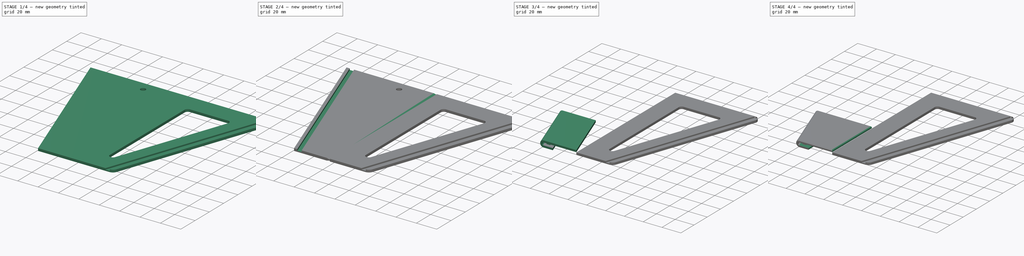
[diagram: build sequence overview — one tinted view per stage of 4, left to right]
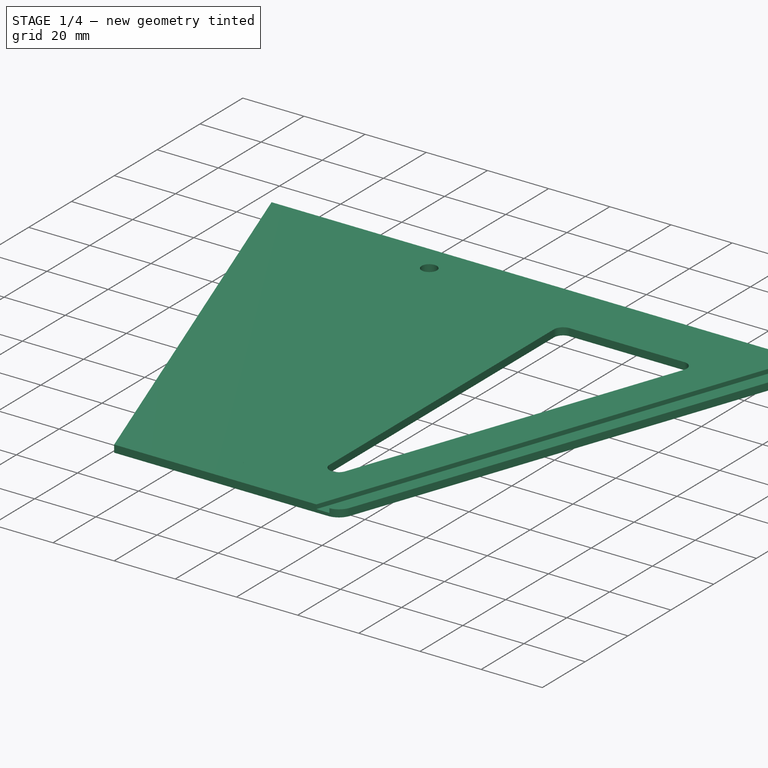
[diagram: stage 1 of 4 — iso view after this stage's code; geometry added in this stage tinted green]
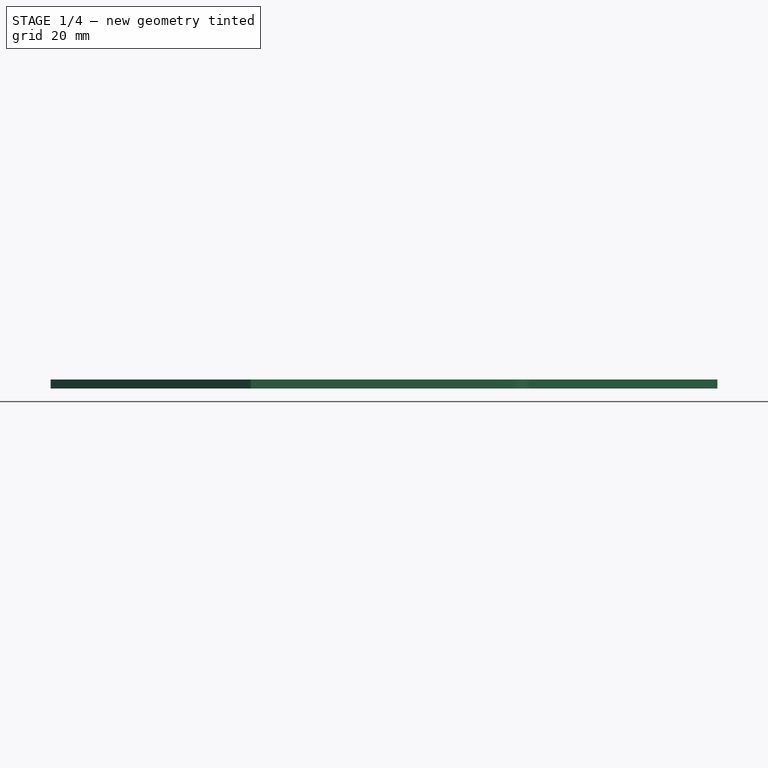
[diagram: stage 1 of 4 — front view after this stage's code; geometry added in this stage tinted green]
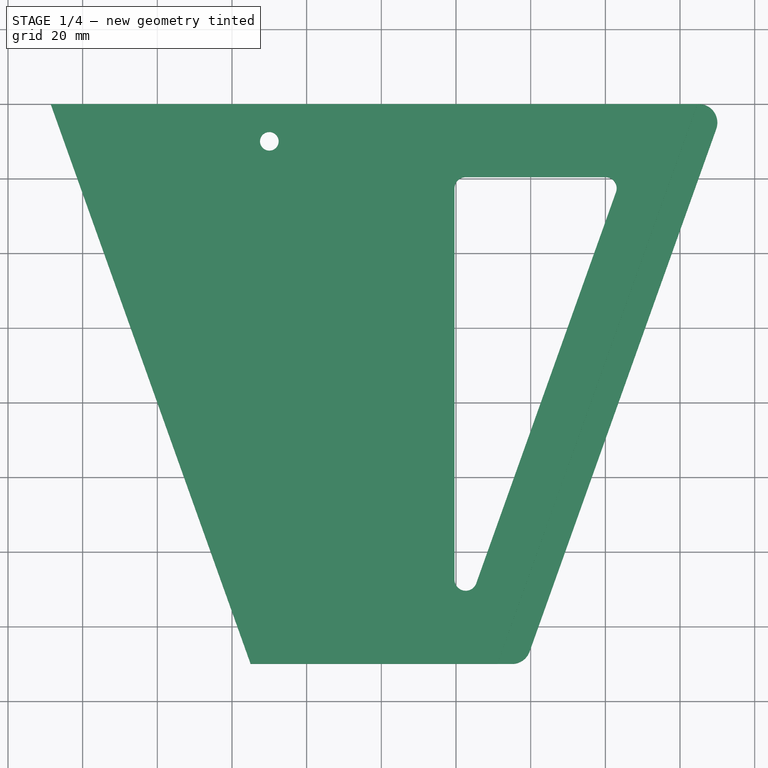
[diagram: stage 1 of 4 — top view after this stage's code; geometry added in this stage tinted green]
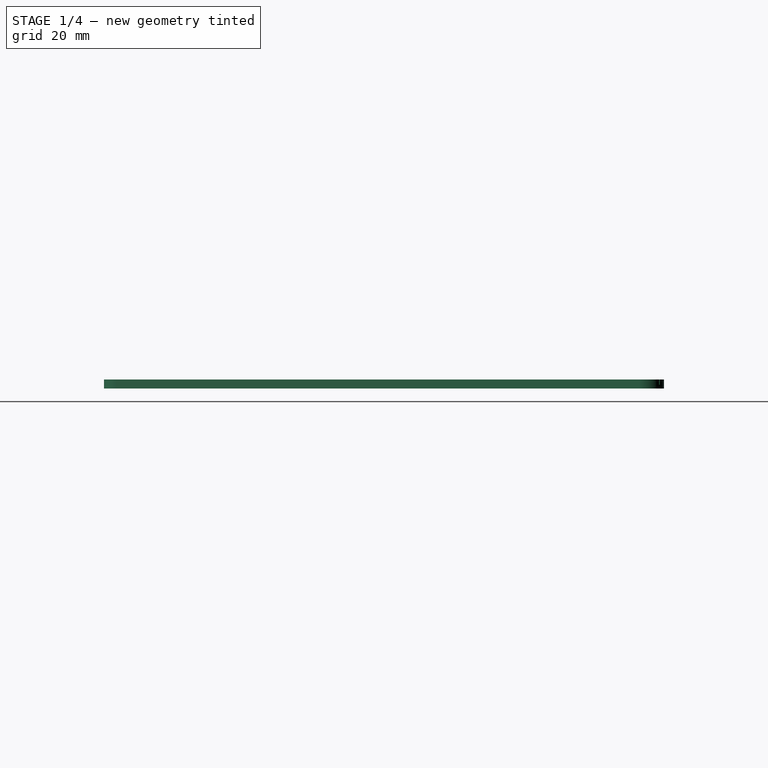
[diagram: stage 1 of 4 — right view after this stage's code; geometry added in this stage tinted green]
FCSTD DOCUMENT  (FreeCAD 26.3R20260624 (Git shallow))
Label: Tracette triangle
License: Creative Commons Attribution-NonCommercial-ShareAlike 4.0
LicenseURL: https://creativecommons.org/licenses/by-nc-sa/4.0/
objects: Sketcher::SketchObject×6, PartDesign::Pad×5, PartDesign::Chamfer×5, App::Point×3, PartDesign::Body×3, PartDesign::Pocket×2, PartDesign::SubShapeBinder×1, App::VarSet×1, PartDesign::Fillet×1
note: 55 computed .brp shape members not serialized (recipe doc carries the construction recipe); baked Part::Feature solids carry a one-line shape summary decoded from their .brp

FEATURE [App::Point] Origin001  label="Origine-point"
  Role = Origin
FEATURE [Sketcher::SketchObject] Sketch
  ArcFitTolerance = 1e-06
  AttachmentSupport = -> [Origin]
  ExternalTypes = [0]
  FullyConstrained = true
  MakeInternals = true
  MapMode = 2
  expr: Constraints[12] = VarSet.Stop_Lenght
  expr: Constraints[13] = VarSet.Range + 10 mm
  expr: Constraints[14] = VarSet.Range
  expr: Constraints[8] = VarSet.Length
  sketch-geometry (6):
    g0: LineSegment StartX=-88.5714 StartY=0 StartZ=0 EndX=0 EndY=0 EndZ=0
    g1: LineSegment StartX=0 StartY=0 StartZ=0 EndX=0 EndY=-150 EndZ=0
    g2: LineSegment StartX=0 StartY=-150 StartZ=0 EndX=-35 EndY=-150 EndZ=0
    g3: LineSegment StartX=-35 StartY=-150 StartZ=0 EndX=-88.5714 EndY=0 EndZ=0
    g4: LineSegment [constr] StartX=-63.5714 StartY=-70 StartZ=0 EndX=0 EndY=-70 EndZ=0
    g5: Circle CenterX=-30 CenterY=-10 CenterZ=0 NormalX=0 NormalY=0 NormalZ=1 AngleXU=0 Radius=2.5
  constraints (18):
    c: PointOnObject(g0,g-1)
    c: Coincident(g0,g-1)
    c: Coincident(g0,g1)
    c: PointOnObject(g1,g-2)
    c: Coincident(g1,g2)
    c: Horizontal(g2)
    c: Coincident(g2,g3)
    c: Coincident(g3,g0)
    c: DistanceY(g1,g1) = 150
    c: PointOnObject(g4,g3)
    c: PointOnObject(g4,g1)
    c: Horizontal(g4)
    c: DistanceY(g1,g4) = 80
    c: DistanceX(g2,g2) = 35
    c: DistanceX(g0,g4) = 25
    c: Diameter(g5) = 5
    c: Distance(g5,g0) = 10
    c: DistanceX(g5,g-1) = 30
FEATURE [PartDesign::Pad] Pad
  Direction = (0,0,1)
  FuzzyTolerance = 0
  Length = 2.4
  Length2 = 10
  Profile = -> Sketch
  ReferenceAxis = -> Sketch [N_Axis]
  Refine = true
  SideType = 0
  Suppressed = false
  Type = 0
  Type2 = 0
FEATURE [PartDesign::Body] Body  label="Ruler"
  AllowCompound = true
  Group = -> [Sketch,Pad,Sketch001,Pocket,Chamfer001,Chamfer002,Fillet001,Chamfer003,Sketch003,Chamfer004]
  Origin = -> Origin
  Tip = -> Chamfer004
FEATURE [App::Point] Origin005  label="Origine-point002"
  Role = Origin
FEATURE [Sketcher::SketchObject] Sketch004
  ArcFitTolerance = 1e-06
  AttachmentSupport = -> [Origin004]
  ExternalTypes = [0]
  FullyConstrained = true
  MakeInternals = true
  MapMode = 2
  expr: Constraints[13] = VarSet.Range + 10 mm
  expr: Constraints[42] = VarSet.Stop_Lenght
  expr: Constraints[45] = VarSet.Range
  expr: Constraints[9] = VarSet.Length
  sketch-geometry (19):
    g0: LineSegment StartX=0 StartY=0 StartZ=0 EndX=85 EndY=0 EndZ=0
    g1: ArcOfCircle CenterX=85 CenterY=-5 CenterZ=0 NormalX=0 NormalY=0 NormalZ=1 AngleXU=0 Radius=5 StartAngle=5.94016 EndAngle=7.85398
    g2: LineSegment StartX=89.7087 StartY=-6.68168 StartZ=0 EndX=39.7087 EndY=-146.682 EndZ=0
    g3: ArcOfCircle CenterX=35 CenterY=-145 CenterZ=0 NormalX=0 NormalY=0 NormalZ=1 AngleXU=0 Radius=5 StartAngle=4.71239 EndAngle=5.94016
    g4: LineSegment StartX=35 StartY=-150 StartZ=0 EndX=0 EndY=-150 EndZ=0
    g5: LineSegment StartX=0 StartY=-150 StartZ=0 EndX=0 EndY=0 EndZ=0
    g6: LineSegment StartX=25.4234 StartY=-128.411 StartZ=0 EndX=62.8533 EndY=-23.6072 EndZ=0
    g7: LineSegment StartX=60.0281 StartY=-19.5982 StartZ=0 EndX=22.5982 EndY=-19.5982 EndZ=0
    g8: ArcOfCircle CenterX=60.0281 CenterY=-22.5982 CenterZ=0 NormalX=0 NormalY=0 NormalZ=1 AngleXU=0 Radius=3 StartAngle=5.94016 EndAngle=7.85398
    g9: GeomPoint [constr] X=64.2851 Y=-19.5982 Z=0
    g10: LineSegment StartX=19.5982 StartY=-22.5982 StartZ=0 EndX=19.5982 EndY=-127.402 EndZ=0
    g11: ArcOfCircle CenterX=22.5982 CenterY=-22.5982 CenterZ=0 NormalX=0 NormalY=0 NormalZ=1 AngleXU=0 Radius=3 StartAngle=1.5708 EndAngle=3.14159
    g12: GeomPoint [constr] X=19.5982 Y=-19.5982 Z=0
    g13: ArcOfCircle CenterX=22.5982 CenterY=-127.402 CenterZ=0 NormalX=0 NormalY=0 NormalZ=1 AngleXU=0 Radius=3 StartAngle=3.14159 EndAngle=5.94016
    g14: ArcOfCircle [constr] CenterX=22.5982 CenterY=-127.402 CenterZ=0 NormalX=0 NormalY=0 NormalZ=1 AngleXU=0 Radius=22.5982 StartAngle=3.14159 EndAngle=5.94016
    g15: ArcOfCircle [constr] CenterX=22.5982 CenterY=-22.5982 CenterZ=0 NormalX=0 NormalY=0 NormalZ=1 AngleXU=0 Radius=22.5982 StartAngle=1.5708 EndAngle=3.14159
    g16: ArcOfCircle [constr] CenterX=60.0281 CenterY=-22.5982 CenterZ=0 NormalX=0 NormalY=0 NormalZ=1 AngleXU=0 Radius=22.5982 StartAngle=5.94016 EndAngle=7.85398
    g17: LineSegment [constr] StartX=67.095 StartY=-70 StartZ=0 EndX=0 EndY=-70 EndZ=0
    g18: GeomPoint [constr] X=92.095 Y=0 Z=0
  constraints (46):
    c: Coincident(g0,g-1)
    c: PointOnObject(g0,g-1)
    c: Tangent(g0,g1) = 1.5708
    c: Tangent(g2,g3) = 1.5708
    c: Tangent(g3,g4) = 1.5708
    c: PointOnObject(g4,g-2)
    c: Coincident(g4,g5)
    c: Coincident(g5,g0)
    c: Horizontal(g4)
    c: DistanceY(g5,g5) = 150
    c: Tangent(g1,g2) = 1.5708
    c: Equal(g3,g1)
    c: Diameter(g1) = 10
    c: DistanceX(g4,g4) = 35
    c: PointOnObject(g9,g7)
    c: PointOnObject(g9,g6)
    c: Tangent(g7,g8) = -1.5708
    c: Tangent(g6,g8) = -1.5708
    c: Vertical(g10)
    c: Horizontal(g7)
    c: PointOnObject(g12,g7)
    c: PointOnObject(g12,g10)
    c: Tangent(g7,g11) = -1.5708
    c: Tangent(g10,g11) = -1.5708
    c: Tangent(g10,g13) = -1.5708
    c: Equal(g11,g8)
    c: Diameter(g8) = 6
    c: Coincident(g14,g13)
    c: Coincident(g15,g11)
    c: Tangent(g15,g5) = 1.5708
    c: Tangent(g14,g5) = 1.5708
    c: Tangent(g14,g4)
    c: Coincident(g16,g8)
    c: Tangent(g16,g0) = 1.5708
    c: Tangent(g16,g2) = 1.5708
    c: Tangent(g15,g0) = 1.5708
    c: Equal(g13,g8)
    c: Tangent(g14,g2) = 1.5708
    c: Tangent(g13,g6) = -1.5708
    c: PointOnObject(g17,g5)
    c: PointOnObject(g17,g2)
    c: Horizontal(g17)
    c: DistanceY(g4,g17) = 80
    c: PointOnObject(g18,g2)
    c: Horizontal(g18,g0)
    c: DistanceX(g17,g18) = 25
FEATURE [PartDesign::Pad] Pad004
  Direction = (0,0,1)
  FuzzyTolerance = 0
  Length = 2.4
  Length2 = 10
  Profile = -> Sketch004 [InternalFace1]
  ReferenceAxis = -> Sketch004 [N_Axis]
  Refine = true
  SideType = 0
  Suppressed = false
  Type = 0
  Type2 = 0
FEATURE [Sketcher::SketchObject] Sketch005
  ArcFitTolerance = 1e-06
  AttachmentSupport = -> [Pad004]
  ExternalGeometry = -> [Pad004]
  ExternalTypes = [0,0,0]
  FullyConstrained = true
  MakeInternals = true
  MapMode = 5
  Placement = pos=(81.677,-29.1704,0) rot=(0.708302,0.499154,0.499154;1.90904rad)
  sketch-geometry (4):
    g0: LineSegment StartX=-141.261 StartY=2.4 StartZ=0 EndX=-141.261 EndY=1 EndZ=0
    g1: LineSegment StartX=-141.261 StartY=1 StartZ=0 EndX=28.5886 EndY=1 EndZ=0
    g2: LineSegment StartX=28.5886 StartY=1 StartZ=0 EndX=28.5886 EndY=2.4 EndZ=0
    g3: LineSegment StartX=28.5886 StartY=2.4 StartZ=0 EndX=-141.261 EndY=2.4 EndZ=0
  constraints (10):
    c: Coincident(g0,g1)
    c: Coincident(g1,g2)
    c: Coincident(g2,g3)
    c: Coincident(g3,g0)
    c: Vertical(g0)
    c: Vertical(g2)
    c: Horizontal(g1)
    c: Coincident(g0,g-4)
    c: Coincident(g-5,g2)
    c: DistanceY(g2,g2) = 1.4
FEATURE [PartDesign::Pocket] Pocket001
  BaseFeature = -> Pad004
  Direction = (-0.94,0.34,0)
  FuzzyTolerance = 0
  Length = 3
  Length2 = -7
  Profile = -> Sketch005
  ReferenceAxis = -> Sketch005 [N_Axis]
  Refine = true
  SideType = 1
  Suppressed = false
  Type = 0
  Type2 = 0
FEATURE [PartDesign::Body] Body002  label="Ruler v2"
  AllowCompound = true
  Group = -> [Sketch004,Pad004,Sketch005,Pocket001]
  Origin = -> Origin004
  Tip = -> Pocket001
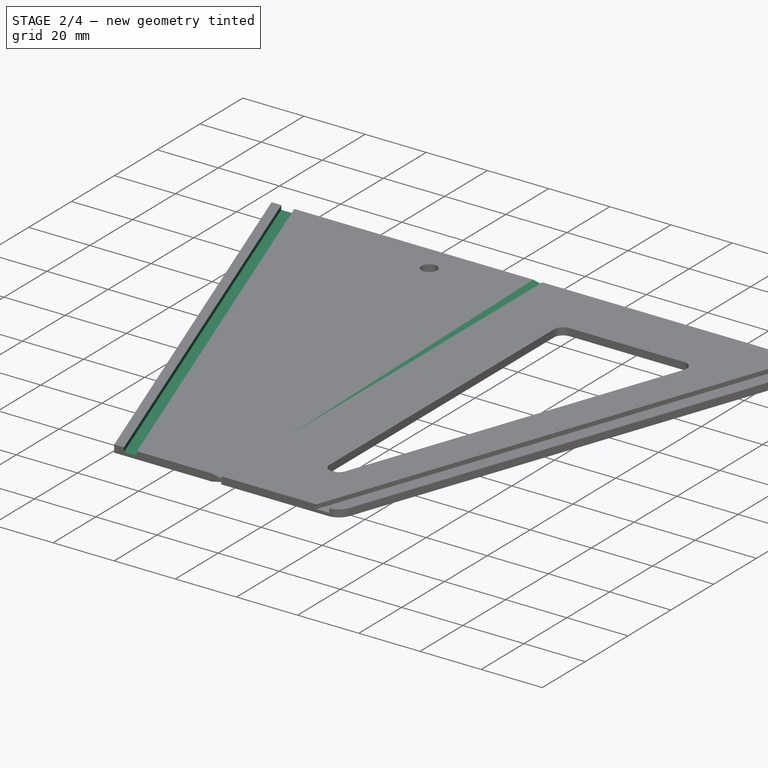
[diagram: stage 2 of 4 — iso view after this stage's code; geometry added in this stage tinted green]
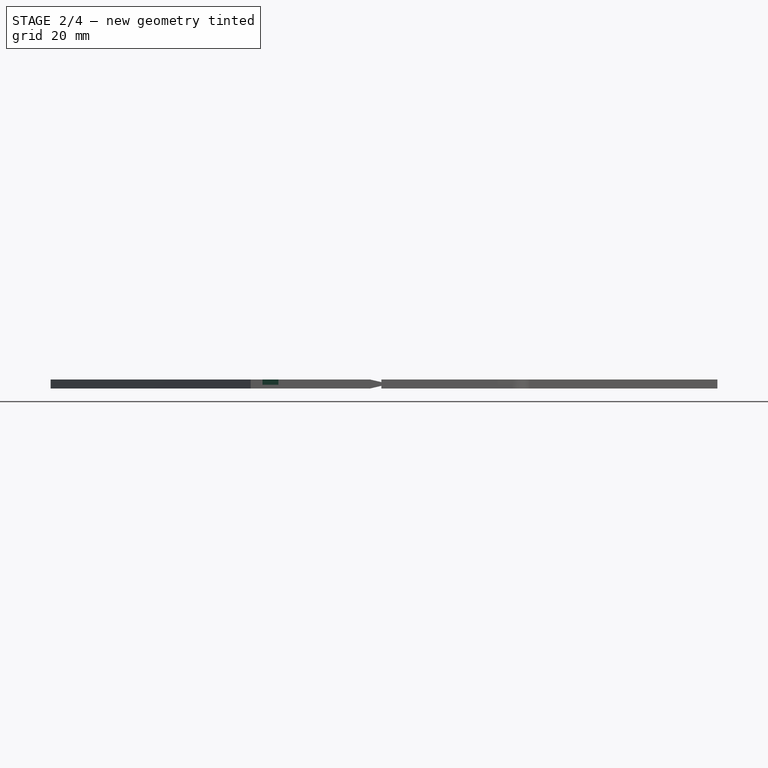
[diagram: stage 2 of 4 — front view after this stage's code; geometry added in this stage tinted green]
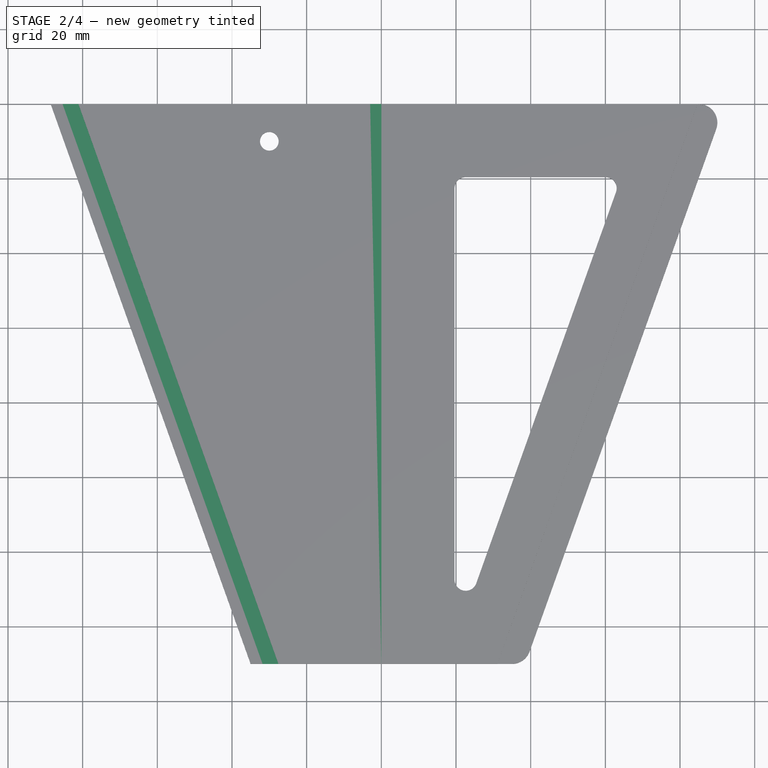
[diagram: stage 2 of 4 — top view after this stage's code; geometry added in this stage tinted green]
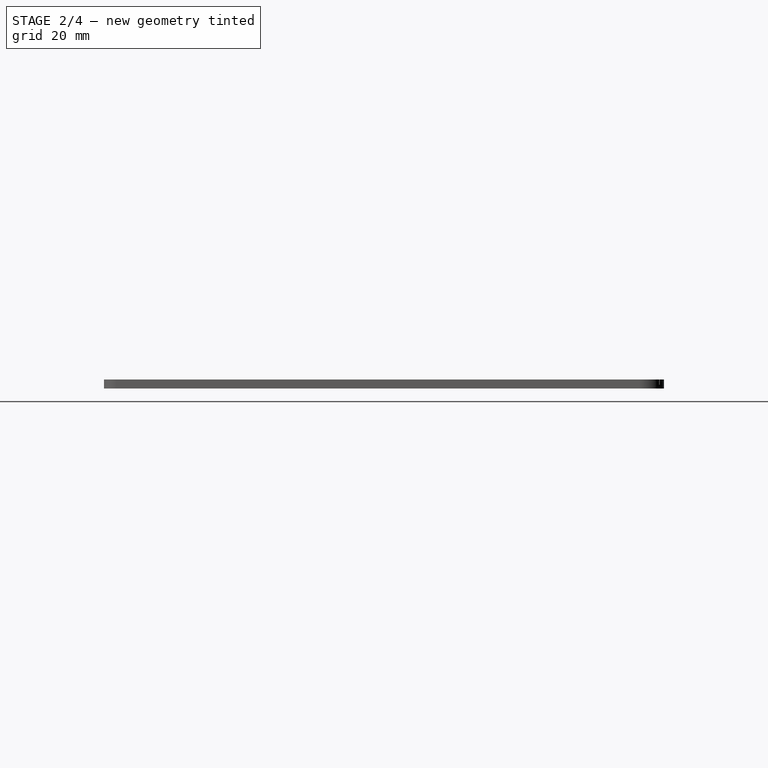
[diagram: stage 2 of 4 — right view after this stage's code; geometry added in this stage tinted green]
FEATURE [Sketcher::SketchObject] Sketch001
  ArcFitTolerance = 1e-06
  AttachmentSupport = -> [Pad]
  ExternalGeometry = -> [Pad]
  ExternalTypes = [0,0]
  FullyConstrained = true
  MakeInternals = true
  MapMode = 5
  Placement = pos=(-78.552,-28.0543,0) rot=(0.708302,-0.499154,-0.499154;1.90904rad)
  sketch-geometry (4):
    g0: LineSegment StartX=-29.7898 StartY=2.4 StartZ=0 EndX=-29.7898 EndY=1 EndZ=0
    g1: LineSegment StartX=-29.7898 StartY=1 StartZ=0 EndX=141.261 EndY=1 EndZ=0
    g2: LineSegment StartX=141.261 StartY=1 StartZ=0 EndX=141.261 EndY=2.4 EndZ=0
    g3: LineSegment StartX=141.261 StartY=2.4 StartZ=0 EndX=-29.7898 EndY=2.4 EndZ=0
  constraints (11):
    c: Coincident(g0,g1)
    c: Coincident(g1,g2)
    c: Coincident(g2,g3)
    c: Coincident(g3,g0)
    c: Vertical(g0)
    c: Vertical(g2)
    c: Horizontal(g1)
    c: Horizontal(g3)
    c: Coincident(g0,g-3)
    c: PointOnObject(g1,g-4)
    c: DistanceY(g2,g2) = 1.4
FEATURE [PartDesign::Pocket] Pocket
  BaseFeature = -> Pad
  Direction = (0.941742,0.336336,0)
  FuzzyTolerance = 0
  Length = 3
  Length2 = -7
  Profile = -> Sketch001
  ReferenceAxis = -> Sketch001 [N_Axis]
  Refine = true
  SideType = 1
  Suppressed = false
  Type = 0
  Type2 = 0
FEATURE [PartDesign::Body] Body001  label="Stop"
  AllowCompound = true
  Group = -> [Binder,Sketch002,Pad001,Pad002,Pad003,Chamfer]
  Origin = -> Origin002
  Tip = -> Chamfer
FEATURE [PartDesign::Chamfer] Chamfer001
  Angle = 45
  Base = -> Pocket [Edge14]
  BaseFeature = -> Pocket
  ChamferType = 1
  FlipDirection = false
  FuzzyTolerance = 0
  Refine = true
  Size = 0.7
  Size2 = 3
  SupportTransform = false
  Suppressed = false
  UseAllEdges = false
FEATURE [PartDesign::Chamfer] Chamfer002
  Angle = 45
  Base = -> Chamfer001 [Edge11]
  BaseFeature = -> Chamfer001
  ChamferType = 1
  FlipDirection = false
  FuzzyTolerance = 0
  Refine = true
  Size = 0.7
  Size2 = 3
  SupportTransform = false
  Suppressed = false
  UseAllEdges = false
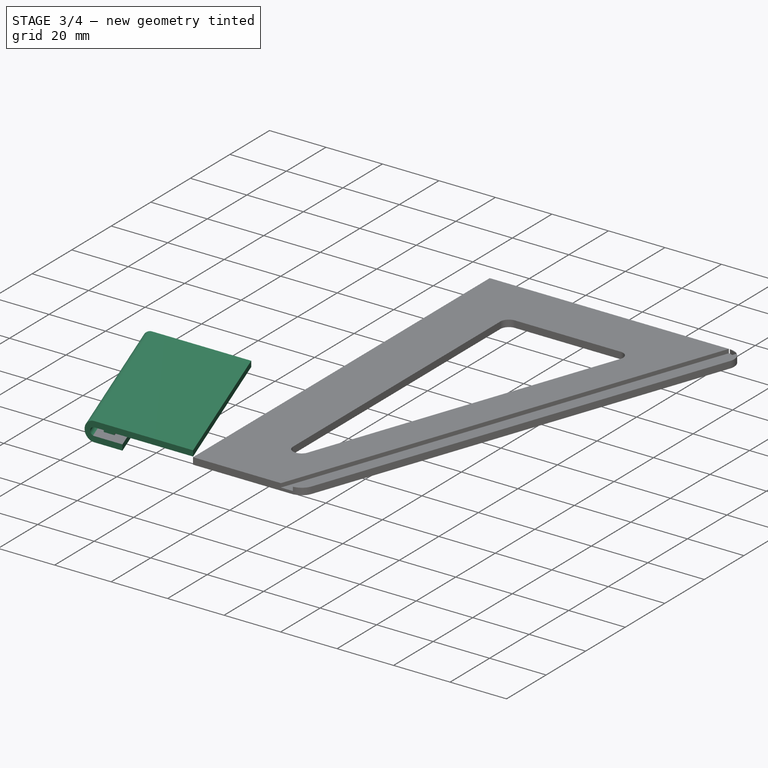
[diagram: stage 3 of 4 — iso view after this stage's code; geometry added in this stage tinted green]
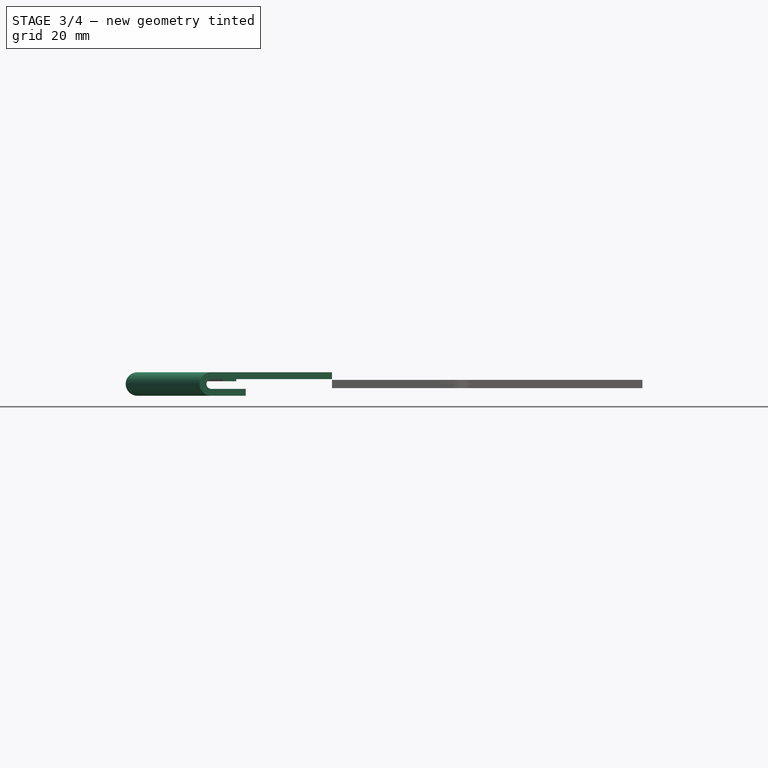
[diagram: stage 3 of 4 — front view after this stage's code; geometry added in this stage tinted green]
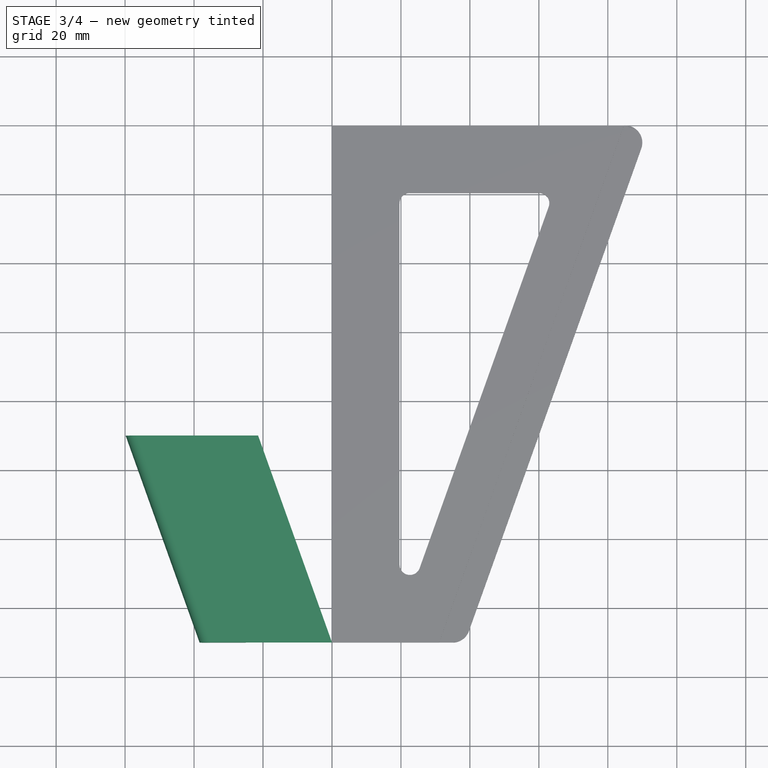
[diagram: stage 3 of 4 — top view after this stage's code; geometry added in this stage tinted green]
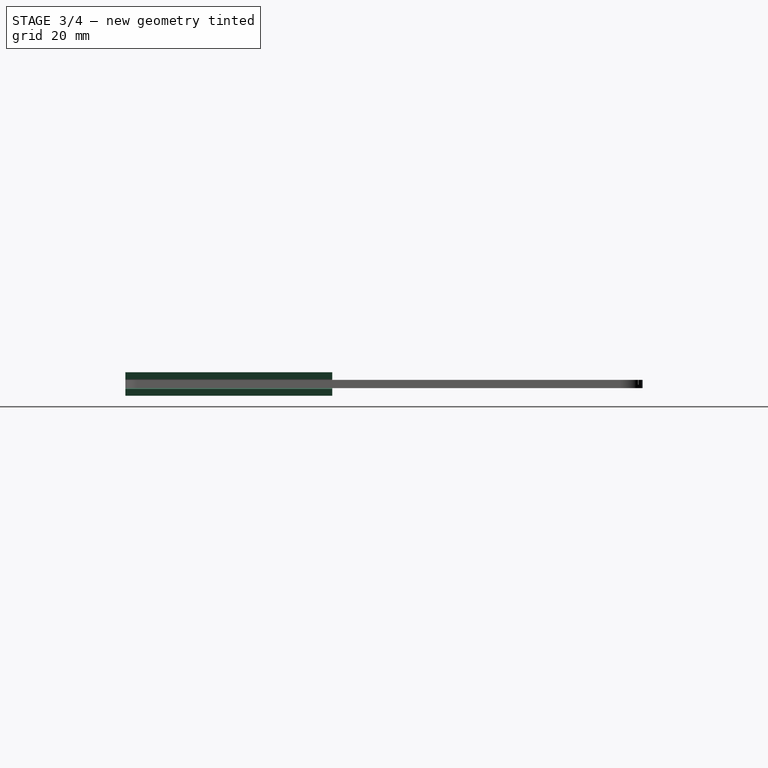
[diagram: stage 3 of 4 — right view after this stage's code; geometry added in this stage tinted green]
FEATURE [App::Point] Origin003  label="Origine-point001"
  Role = Origin
FEATURE [PartDesign::SubShapeBinder] Binder
  BindCopyOnChange = 0
  BindMode = 0
  ClaimChildren = false
  Context = -> Body001 [Binder.]
  Fuse = false
  MakeFace = true
  OffsetFill = false
  OffsetIntersection = false
  OffsetJoinType = 0
  OffsetOpenResult = false
  PartialLoad = false
  Refine = true
  Relative = true
  Support = -> [Body]
  _Version = 2
FEATURE [Sketcher::SketchObject] Sketch002
  ArcFitTolerance = 1e-06
  AttachmentSupport = -> [Binder]
  ExternalGeometry = -> [Binder]
  ExternalTypes = [0,0,0,0]
  FullyConstrained = true
  MakeInternals = true
  MapMode = 5
  Placement = pos=(0,-150,0) rot=(1,0,0;1.5708rad)
  expr: Constraints[34] = VarSet.Range
  sketch-geometry (12):
    g0: ArcOfCircle CenterX=-35 CenterY=1.2 CenterZ=0 NormalX=0 NormalY=0 NormalZ=1 AngleXU=0 Radius=1.4 StartAngle=1.5708 EndAngle=4.71239
    g1: LineSegment StartX=-35 StartY=-0.2 StartZ=0 EndX=-25 EndY=-0.2 EndZ=0
    g2: LineSegment StartX=-25 StartY=-0.2 StartZ=0 EndX=-25 EndY=-2.2 EndZ=0
    g3: LineSegment StartX=-25 StartY=-2.2 StartZ=0 EndX=-35 EndY=-2.2 EndZ=0
    g4: ArcOfCircle CenterX=-35 CenterY=1.2 CenterZ=0 NormalX=0 NormalY=0 NormalZ=1 AngleXU=0 Radius=3.4 StartAngle=1.5708 EndAngle=4.71239
    g5: LineSegment StartX=-35 StartY=2.6 StartZ=0 EndX=-31.6144 EndY=2.6 EndZ=0
    g6: LineSegment StartX=-31.6144 StartY=2.6 StartZ=0 EndX=-31.6144 EndY=2 EndZ=0
    g7: LineSegment StartX=-31.6144 StartY=2 StartZ=0 EndX=-27.767 EndY=2 EndZ=0
    g8: LineSegment StartX=-27.767 StartY=2 StartZ=0 EndX=-27.767 EndY=2.6 EndZ=0
    g9: LineSegment StartX=-27.767 StartY=2.6 StartZ=0 EndX=0 EndY=2.6 EndZ=0
    g10: LineSegment StartX=0 StartY=2.6 StartZ=0 EndX=0 EndY=4.6 EndZ=0
    g11: LineSegment StartX=0 StartY=4.6 StartZ=0 EndX=-35 EndY=4.6 EndZ=0
  constraints (35):
    c: Symmetric(g-6,g-4,g0)
    c: DistanceY(g-4,g0) = 0.2
    c: Vertical(g0,g-4)
    c: Vertical(g0,g-6)
    c: Coincident(g1,g0)
    c: Horizontal(g1)
    c: Coincident(g1,g2)
    c: Coincident(g2,g3)
    c: Horizontal(g3)
    c: Coincident(g4,g0)
    c: Coincident(g4,g3)
    c: Coincident(g5,g0)
    c: Horizontal(g5)
    c: Coincident(g5,g6)
    c: Vertical(g6)
    c: Coincident(g6,g7)
    c: Horizontal(g7)
    c: Coincident(g7,g8)
    c: Vertical(g8)
    c: Coincident(g8,g9)
    c: Horizontal(g9)
    c: Coincident(g9,g10)
    c: Vertical(g10)
    c: Coincident(g10,g11)
    c: Horizontal(g11)
    c: DistanceX(g-4,g6) = 0.2
    c: DistanceX(g8,g-3) = 0.2
    c: Distance(g7,g-5) = 1
    c: DistanceY(g10,g10) = 2
    c: Horizontal(g8,g5)
    c: Vertical(g3,g0)
    c: Tangent(g11,g4) = -1.5708
    c: Vertical(g2)
    c: Vertical(g9,g-3)
    c: DistanceX(g1,g-6) = 25
FEATURE [PartDesign::Pad] Pad001
  Direction = (0.336336,-0.941742,0)
  FuzzyTolerance = 0
  Length = 60
  Length2 = 10
  Profile = -> Sketch002
  ReferenceAxis = -> Binder [Edge56]
  Refine = true
  Reversed = true
  SideType = 0
  Suppressed = false
  Type = 0
  Type2 = 0
FEATURE [PartDesign::Fillet] Fillet001
  Base = -> Chamfer002 [Edge24,Edge6]
  BaseFeature = -> Chamfer002
  FuzzyTolerance = 0
  Radius = 2
  Refine = true
  SupportTransform = false
  Suppressed = false
  UseAllEdges = false
FEATURE [PartDesign::Chamfer] Chamfer003
  Angle = 45
  Base = -> Fillet001 [Edge14,Edge22,Edge9,Edge34]
  BaseFeature = -> Fillet001
  ChamferType = 0
  FlipDirection = false
  FuzzyTolerance = 0
  Refine = true
  Size = 0.5
  Size2 = 1
  SupportTransform = false
  Suppressed = false
  UseAllEdges = false
FEATURE [Sketcher::SketchObject] Sketch003
  ArcFitTolerance = 1e-06
  AttachmentSupport = -> [Chamfer003]
  ExternalTypes = [0,0]
  FullyConstrained = true
  MakeInternals = true
  MapMode = 5
  Placement = pos=(0,0,2.4) rot=(0,0,1;0rad)
FEATURE [PartDesign::Chamfer] Chamfer004
  Angle = 45
  Base = -> Chamfer003 [Face26]
  BaseFeature = -> Chamfer003
  ChamferType = 0
  FlipDirection = false
  FuzzyTolerance = 0
  Refine = true
  Size = 0.7
  Size2 = 1
  SupportTransform = false
  Suppressed = false
  UseAllEdges = false
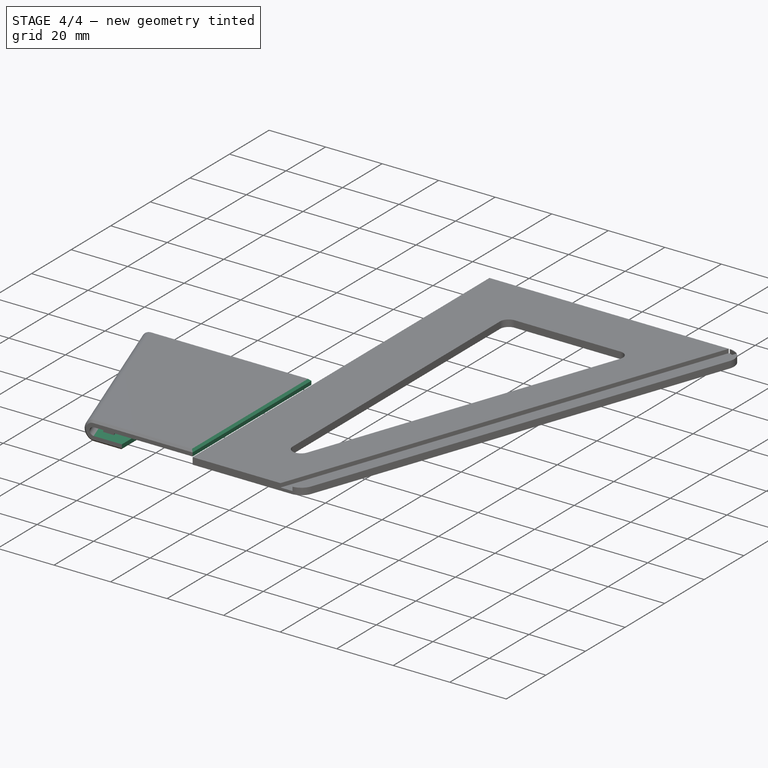
[diagram: stage 4 of 4 — iso view after this stage's code; geometry added in this stage tinted green]
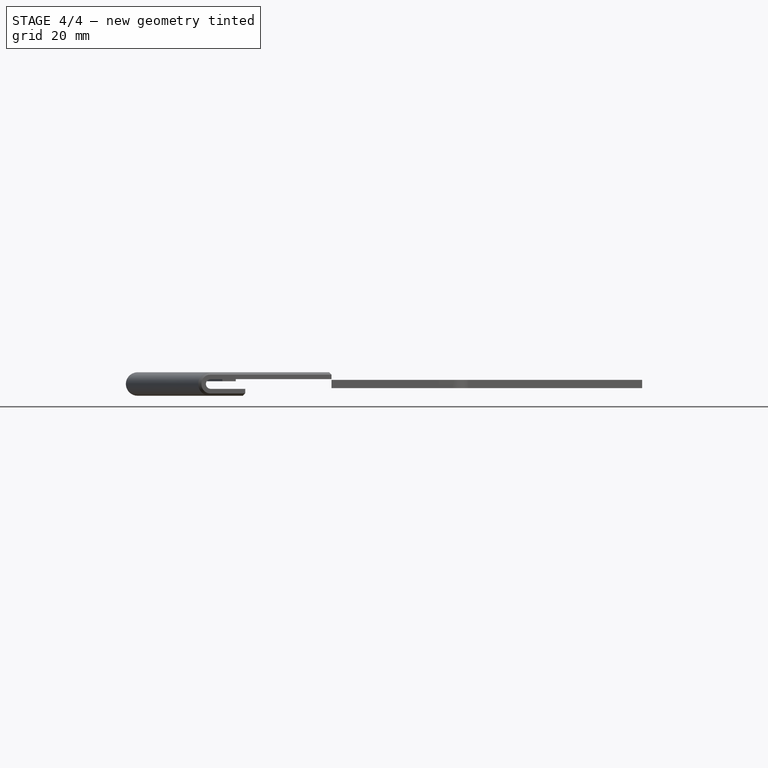
[diagram: stage 4 of 4 — front view after this stage's code; geometry added in this stage tinted green]
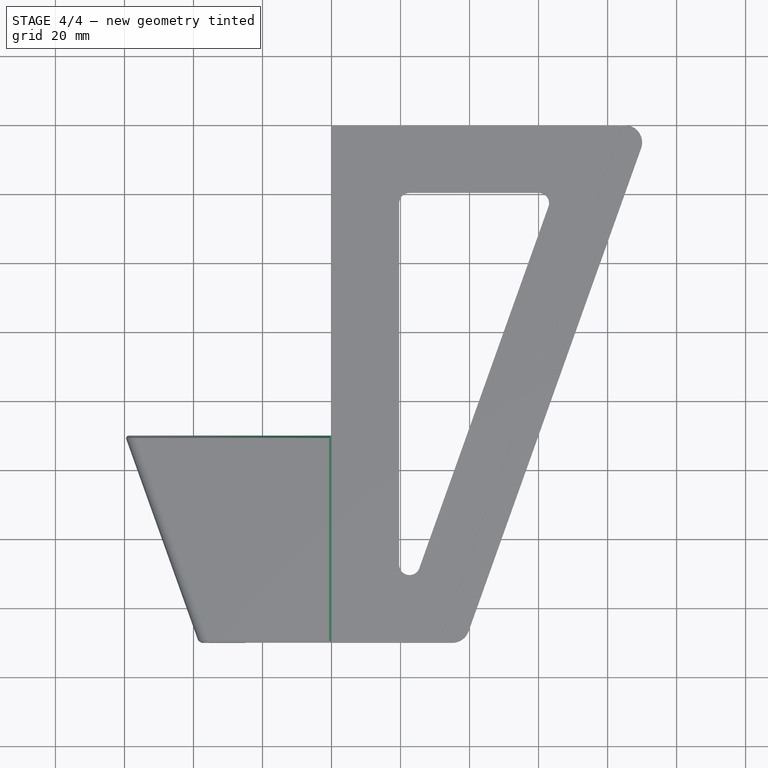
[diagram: stage 4 of 4 — top view after this stage's code; geometry added in this stage tinted green]
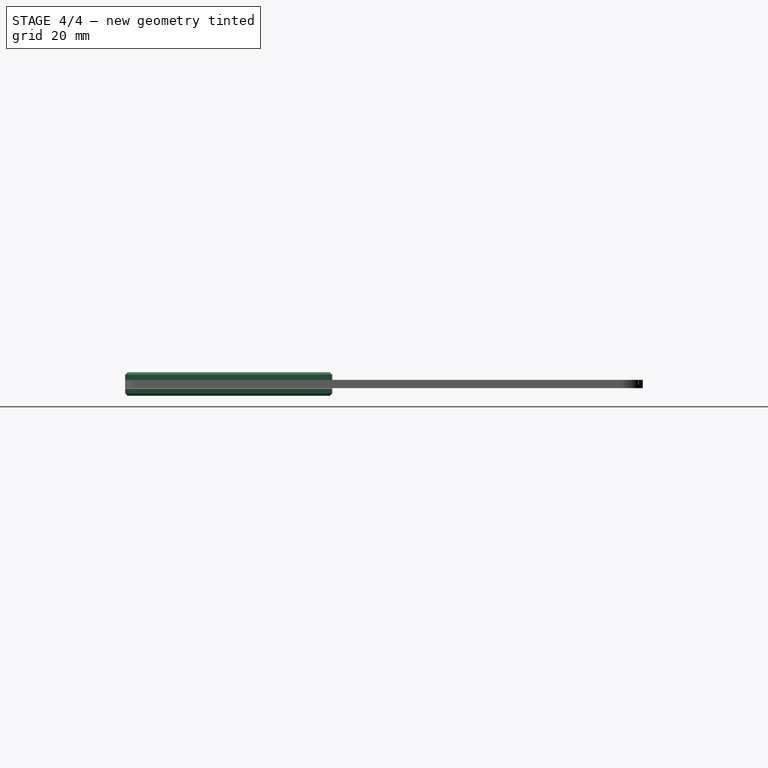
[diagram: stage 4 of 4 — right view after this stage's code; geometry added in this stage tinted green]
FEATURE [PartDesign::Pad] Pad002
  BaseFeature = -> Pad001
  Direction = (-1,0,0)
  FuzzyTolerance = 0
  Length = 10
  Length2 = 10
  Offset = -25
  Profile = -> Pad001 [Face3]
  ReferenceAxis = -> Pad001 [Edge18]
  Refine = true
  SideType = 0
  Suppressed = false
  Type = 3
  Type2 = 0
  UpToFace = -> Binder [Face11]
  expr: Offset = -VarSet.Range
FEATURE [PartDesign::Pad] Pad003
  BaseFeature = -> Pad002
  Direction = (-1,0,0)
  FuzzyTolerance = 0
  Length = 10
  Length2 = 10
  Profile = -> Pad002 [Face8]
  ReferenceAxis = -> Pad002 [Edge12]
  Refine = true
  Reversed = true
  SideType = 0
  Suppressed = false
  Type = 3
  Type2 = 0
  UpToFace = -> Binder [Face11]
FEATURE [App::VarSet] VarSet
  Length = 150
  Range = 25
  Stop_Lenght = 80
FEATURE [PartDesign::Chamfer] Chamfer
  Angle = 45
  Base = -> Pad003 [Face14,Edge23]
  BaseFeature = -> Pad003
  ChamferType = 0
  FlipDirection = false
  FuzzyTolerance = 0
  Refine = true
  Size = 0.7
  Size2 = 1
  SupportTransform = false
  Suppressed = false
  UseAllEdges = false
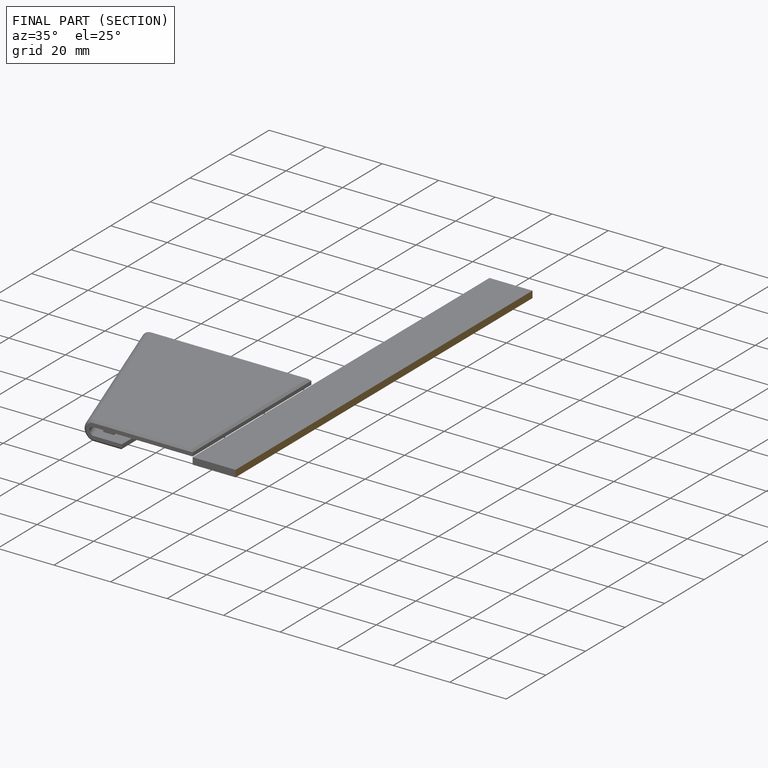
[diagram: finished part — half-section view (interior)]
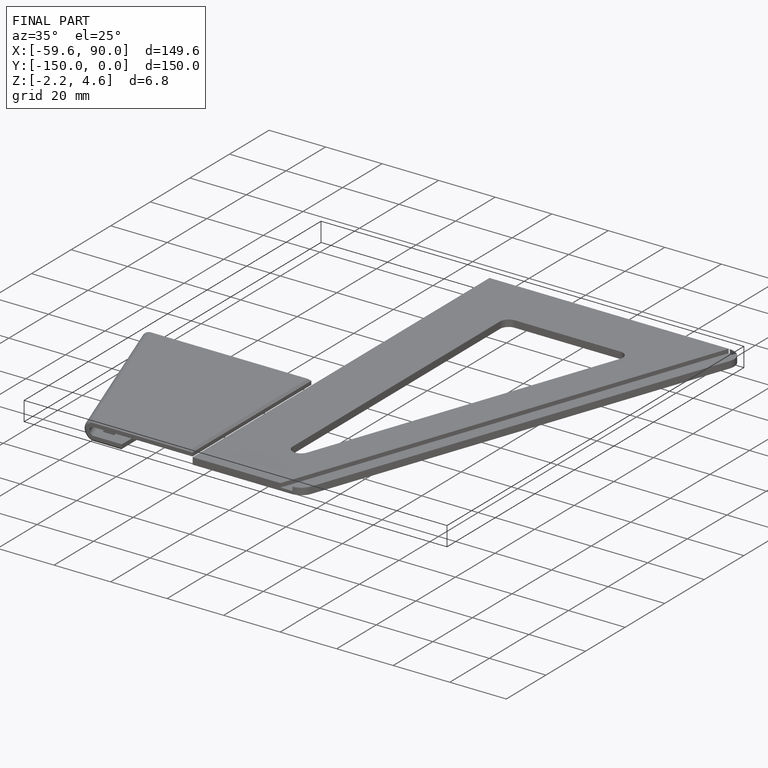
[diagram: finished part — iso view with bounding-box wireframe]
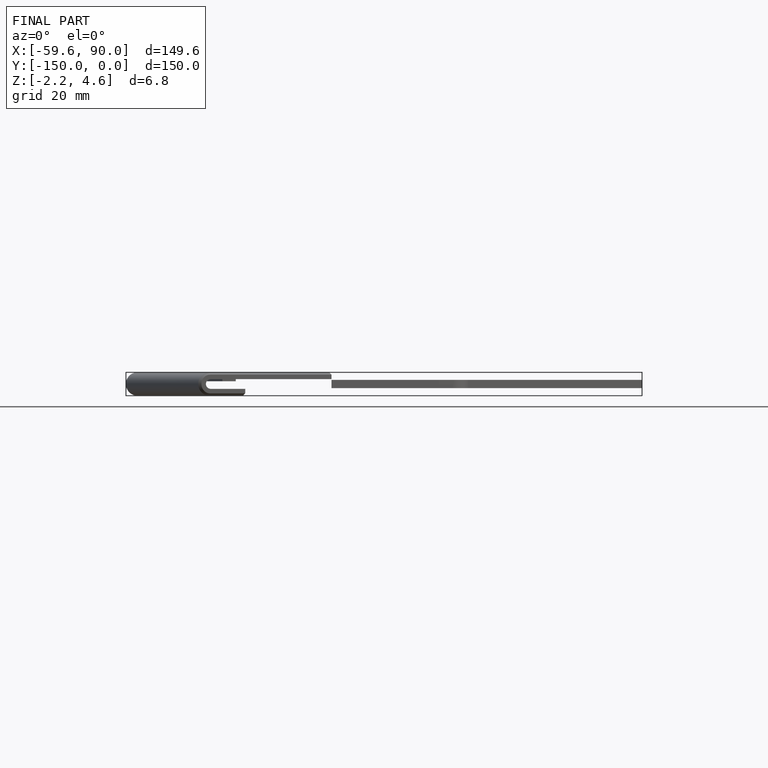
[diagram: finished part — front view with bounding-box wireframe]
